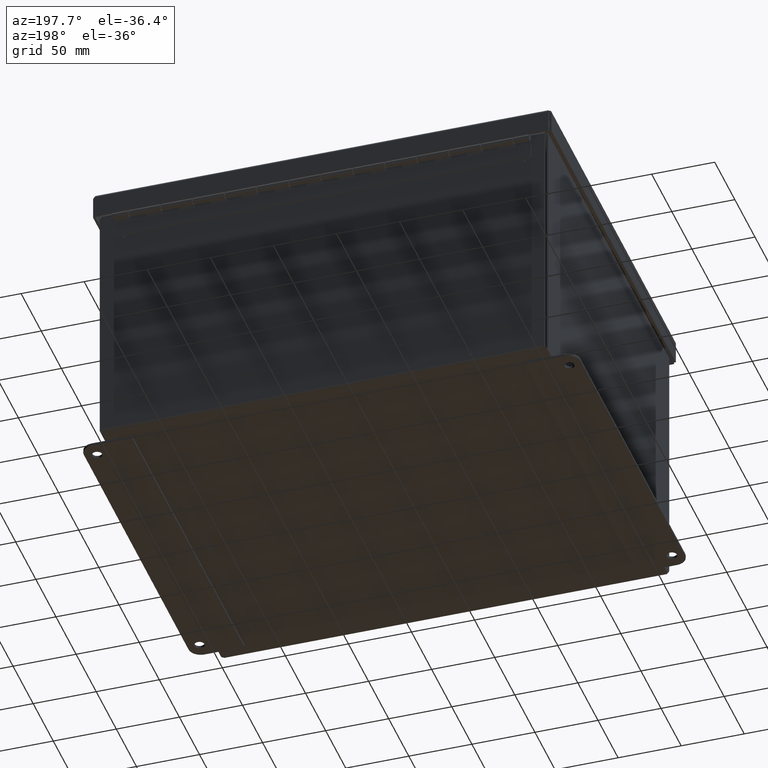
[diagram: clean part render]
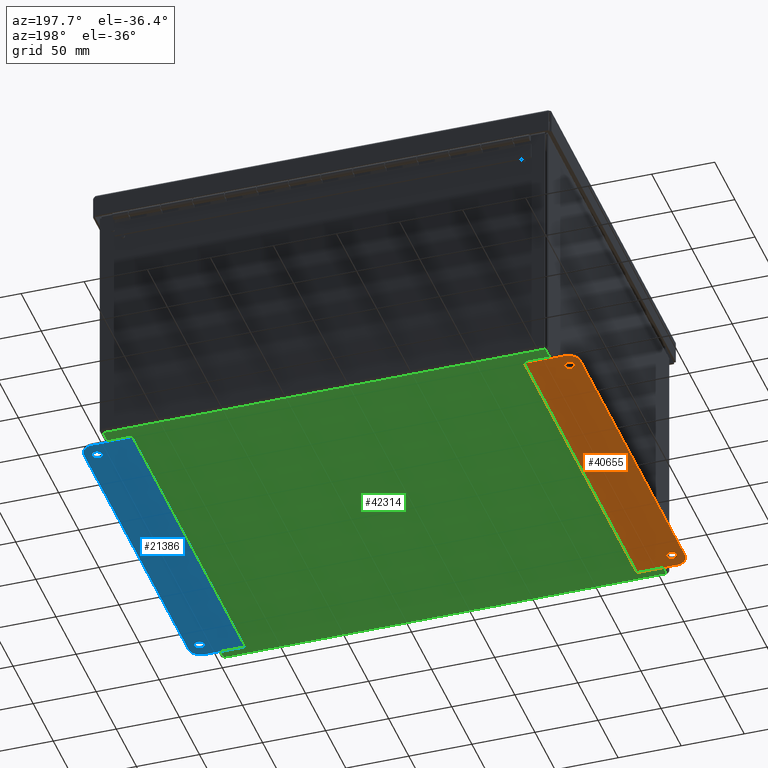
[diagram: same view with three faces highlighted in distinct colors, each labeled with its STEP entity id]
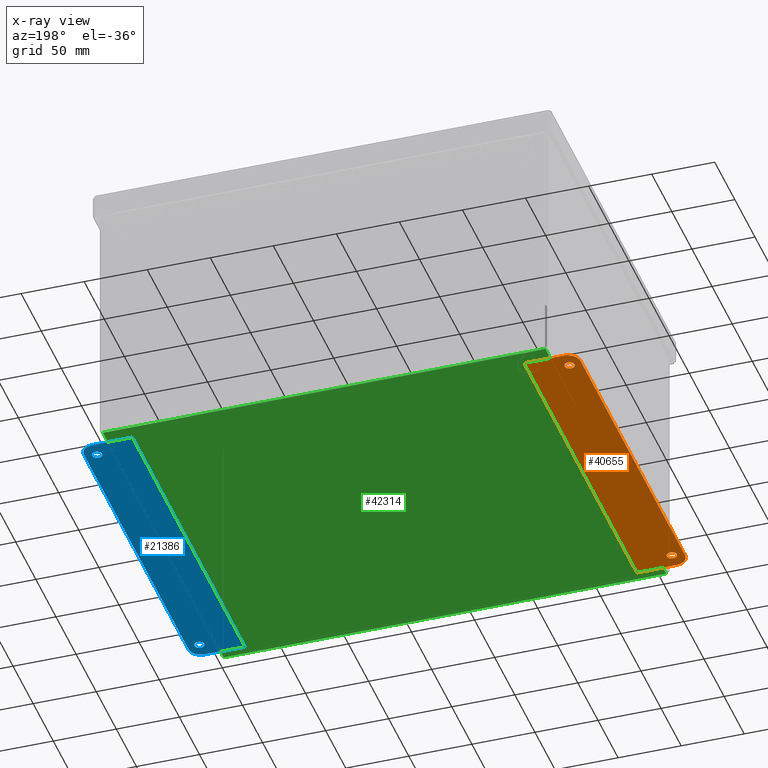
[diagram: x-ray of the same camera — body ghosted, the three highlighted faces saturated]
A machine part, auxiliary view with three faces highlighted in distinct colors.
The next image is the same camera in x-ray (body ghosted, the three faces saturated) — at least one of them is partly hidden behind the body in this view.
Their STEP definitions:

[orange] entity #40655 — the highlighted planar face has unit normal (-0, 0, 1).
#59 = DIRECTION ( 'NONE',  ( 5.827942386483758377E-15, 1.000000000000000000, -8.741913579725637566E-15 ) ) ;
#718 = VERTEX_POINT ( 'NONE', #41761 ) ;
#3323 = CARTESIAN_POINT ( 'NONE',  ( -10.37500000000001243, 3.126100000000546775, -5.388500000001077872 ) ) ;
#4064 = VERTEX_POINT ( 'NONE', #9089 ) ;
#4115 = LINE ( 'NONE', #5648, #13143 ) ;
#4282 = ORIENTED_EDGE ( 'NONE', *, *, #37101, .F. ) ;
#4761 = DIRECTION ( 'NONE',  ( 5.827942386483758377E-15, 1.000000000000000000, -8.741913579725637566E-15 ) ) ;
#5225 = AXIS2_PLACEMENT_3D ( 'NONE', #3323, #17056, #59 ) ;
#5228 = DIRECTION ( 'NONE',  ( -1.000000000000000000, 4.550208014418984023E-15, -6.633095091514698669E-15 ) ) ;
#5648 = CARTESIAN_POINT ( 'NONE',  ( -10.37500000000001243, 3.501100000000546775, -5.388500000001081425 ) ) ;
#5702 = DIRECTION ( 'NONE',  ( -6.633095091514660015E-15, 8.483830530972219345E-15, 1.000000000000000000 ) ) ;
#6813 = CARTESIAN_POINT ( 'NONE',  ( -9.125000000000010658, 3.501100000000540557, -5.388500000001072543 ) ) ;
#7076 = EDGE_CURVE ( 'NONE', #14831, #12314, #9571, .T. ) ;
#8065 = DIRECTION ( 'NONE',  ( 1.000000000000000000, -4.235499125548860679E-15, 6.633095091514696303E-15 ) ) ;
#8532 = DIRECTION ( 'NONE',  ( -6.633095091514660015E-15, 8.483830530972219345E-15, 1.000000000000000000 ) ) ;
#9089 = CARTESIAN_POINT ( 'NONE',  ( -9.125000000000060396, -7.498899999999458998, -5.388500000000980172 ) ) ;
#9571 = LINE ( 'NONE', #11664, #43138 ) ;
#9697 = EDGE_CURVE ( 'NONE', #22745, #718, #4115, .T. ) ;
#9968 = FACE_BOUND ( 'NONE', #22149, .T. ) ;
#11036 = CIRCLE ( 'NONE', #39293, 0.1549999999999998601 ) ;
#11588 = EDGE_LOOP ( 'NONE', ( #38225 ) ) ;
#11620 = AXIS2_PLACEMENT_3D ( 'NONE', #44102, #16506, #40235 ) ;
#11664 = CARTESIAN_POINT ( 'NONE',  ( -10.75000000000006040, -7.123899999999451005, -5.388500000000994383 ) ) ;
#11947 = DIRECTION ( 'NONE',  ( 0.0000000000000000000, 1.000000000000000000, -7.049930306230363182E-15 ) ) ;
#12314 = VERTEX_POINT ( 'NONE', #37268 ) ;
#13143 = VECTOR ( 'NONE', #5228, 39.37007874015748143 ) ;
#14831 = VERTEX_POINT ( 'NONE', #23381 ) ;
#14854 = CARTESIAN_POINT ( 'NONE',  ( -9.125000000000010658, 3.501100000000540557, -5.388500000001072543 ) ) ;
#16506 = DIRECTION ( 'NONE',  ( -6.633095091514660015E-15, 8.483830530972219345E-15, 1.000000000000000000 ) ) ;
#16612 = EDGE_CURVE ( 'NONE', #38915, #38915, #43213, .T. ) ;
#17056 = DIRECTION ( 'NONE',  ( -6.633095091514660015E-15, 8.483830530972219345E-15, 1.000000000000000000 ) ) ;
#18101 = EDGE_LOOP ( 'NONE', ( #4282, #29662, #41437, #27826, #34482, #19038 ) ) ;
#18116 = CARTESIAN_POINT ( 'NONE',  ( -10.37500000000005684, -6.998899999999452781, -5.388500000000991719 ) ) ;
#19038 = ORIENTED_EDGE ( 'NONE', *, *, #42955, .F. ) ;
#19055 = EDGE_CURVE ( 'NONE', #12314, #30542, #35437, .T. ) ;
#19753 = DIRECTION ( 'NONE',  ( 4.550208014419040032E-15, 1.000000000000000000, -8.483830530972189368E-15 ) ) ;
#19802 = VERTEX_POINT ( 'NONE', #25960 ) ;
#20258 = AXIS2_PLACEMENT_3D ( 'NONE', #22868, #5702, #19753 ) ;
#22149 = EDGE_LOOP ( 'NONE', ( #36528 ) ) ;
#22386 = CARTESIAN_POINT ( 'NONE',  ( -10.37500000000006217, -7.498899999999453669, -5.388500000000988166 ) ) ;
#22745 = VERTEX_POINT ( 'NONE', #6813 ) ;
#22868 = CARTESIAN_POINT ( 'NONE',  ( -9.925968017746850336, -1.998899999999456112, -5.388500000001032575 ) ) ;
#23236 = AXIS2_PLACEMENT_3D ( 'NONE', #41784, #42086, #4761 ) ;
#23381 = CARTESIAN_POINT ( 'NONE',  ( -10.75000000000001421, 3.126100000000546775, -5.388500000001080537 ) ) ;
#25956 = FACE_BOUND ( 'NONE', #11588, .T. ) ;
#25960 = CARTESIAN_POINT ( 'NONE',  ( -10.37500000000005684, -6.843899999999453421, -5.388500000000992607 ) ) ;
#26651 = CIRCLE ( 'NONE', #5225, 0.3750000000000002220 ) ;
#27826 = ORIENTED_EDGE ( 'NONE', *, *, #38044, .F. ) ;
#29259 = CARTESIAN_POINT ( 'NONE',  ( -9.125000000000060396, -7.498899999999458998, -5.388500000000980172 ) ) ;
#29529 = VECTOR ( 'NONE', #8065, 39.37007874015748143 ) ;
#29662 = ORIENTED_EDGE ( 'NONE', *, *, #19055, .F. ) ;
#30542 = VERTEX_POINT ( 'NONE', #22386 ) ;
#31301 = VECTOR ( 'NONE', #34468, 39.37007874015748143 ) ;
#32363 = LINE ( 'NONE', #14854, #31301 ) ;
#34468 = DIRECTION ( 'NONE',  ( 4.550208014419040032E-15, 1.000000000000000000, -8.483830530972189368E-15 ) ) ;
#34482 = ORIENTED_EDGE ( 'NONE', *, *, #9697, .F. ) ;
#35218 = CARTESIAN_POINT ( 'NONE',  ( -10.37500000000001421, 3.156100000000547023, -5.388500000001077872 ) ) ;
#35437 = CIRCLE ( 'NONE', #23236, 0.3750000000000002220 ) ;
#36102 = FACE_OUTER_BOUND ( 'NONE', #18101, .T. ) ;
#36528 = ORIENTED_EDGE ( 'NONE', *, *, #16612, .T. ) ;
#37101 = EDGE_CURVE ( 'NONE', #30542, #4064, #38517, .T. ) ;
#37268 = CARTESIAN_POINT ( 'NONE',  ( -10.75000000000006040, -7.123899999999451005, -5.388500000000994383 ) ) ;
#38044 = EDGE_CURVE ( 'NONE', #718, #14831, #26651, .T. ) ;
#38225 = ORIENTED_EDGE ( 'NONE', *, *, #40588, .T. ) ;
#38517 = LINE ( 'NONE', #29259, #29529 ) ;
#38915 = VERTEX_POINT ( 'NONE', #35218 ) ;
#39293 = AXIS2_PLACEMENT_3D ( 'NONE', #18116, #8532, #11947 ) ;
#40235 = DIRECTION ( 'NONE',  ( 0.0000000000000000000, 1.000000000000000000, -7.049930306230363182E-15 ) ) ;
#40588 = EDGE_CURVE ( 'NONE', #19802, #19802, #11036, .T. ) ;
#40655 = ADVANCED_FACE ( 'NONE', ( #25956, #9968, #36102 ), #43187, .F. ) ;
#41437 = ORIENTED_EDGE ( 'NONE', *, *, #7076, .F. ) ;
#41761 = CARTESIAN_POINT ( 'NONE',  ( -10.37500000000001243, 3.501100000000546775, -5.388500000001081425 ) ) ;
#41784 = CARTESIAN_POINT ( 'NONE',  ( -10.37500000000006040, -7.123899999999453669, -5.388500000000990831 ) ) ;
#42086 = DIRECTION ( 'NONE',  ( -6.633095091514660015E-15, 8.483830530972219345E-15, 1.000000000000000000 ) ) ;
#42320 = DIRECTION ( 'NONE',  ( -4.413748875613567126E-15, -1.000000000000000000, 8.483830530972190946E-15 ) ) ;
#42955 = EDGE_CURVE ( 'NONE', #4064, #22745, #32363, .T. ) ;
#43138 = VECTOR ( 'NONE', #42320, 39.37007874015748143 ) ;
#43187 = PLANE ( 'NONE',  #20258 ) ;
#43213 = CIRCLE ( 'NONE', #11620, 0.1549999999999998601 ) ;
#44102 = CARTESIAN_POINT ( 'NONE',  ( -10.37500000000001421, 3.001100000000547219, -5.388500000001076984 ) ) ;

[blue] entity #21386 — the highlighted planar face has unit normal (-0, 0, 1).
#503 = AXIS2_PLACEMENT_3D ( 'NONE', #37149, #4551, #38906 ) ;
#670 = VERTEX_POINT ( 'NONE', #8290 ) ;
#1434 = AXIS2_PLACEMENT_3D ( 'NONE', #2997, #3294, #43893 ) ;
#1937 = LINE ( 'NONE', #42631, #5140 ) ;
#2037 = CARTESIAN_POINT ( 'NONE',  ( 3.124999999999940492, -7.498899999999379062, -5.388500000000896684 ) ) ;
#2997 = CARTESIAN_POINT ( 'NONE',  ( 4.374999999999988454, 3.126100000000614276, -5.388500000000978396 ) ) ;
#3029 = CIRCLE ( 'NONE', #20784, 0.3750000000000002220 ) ;
#3294 = DIRECTION ( 'NONE',  ( -6.633095091514619783E-15, 8.483830530972239855E-15, 1.000000000000000000 ) ) ;
#3935 = ORIENTED_EDGE ( 'NONE', *, *, #15545, .T. ) ;
#4394 = LINE ( 'NONE', #2037, #25130 ) ;
#4551 = DIRECTION ( 'NONE',  ( -6.633095091514619783E-15, 8.483830530972239855E-15, 1.000000000000000000 ) ) ;
#5140 = VECTOR ( 'NONE', #35799, 39.37007874015748143 ) ;
#5298 = CARTESIAN_POINT ( 'NONE',  ( 4.374999999999940492, -7.498899999999386168, -5.388500000000887802 ) ) ;
#5961 = ORIENTED_EDGE ( 'NONE', *, *, #20860, .T. ) ;
#6257 = EDGE_LOOP ( 'NONE', ( #5961 ) ) ;
#8290 = CARTESIAN_POINT ( 'NONE',  ( 4.749999999999943157, -7.123899999999386168, -5.388500000000888690 ) ) ;
#8875 = AXIS2_PLACEMENT_3D ( 'NONE', #40975, #37715, #37274 ) ;
#9302 = DIRECTION ( 'NONE',  ( -4.370956789862818783E-15, -1.000000000000000000, 8.741913579725637566E-15 ) ) ;
#10366 = DIRECTION ( 'NONE',  ( -1.000000000000000000, 4.168460429623900916E-15, -6.633095091514655282E-15 ) ) ;
#11223 = PLANE ( 'NONE',  #503 ) ;
#11692 = CARTESIAN_POINT ( 'NONE',  ( 4.374999999999942268, -7.123899999999386168, -5.388500000000891355 ) ) ;
#11958 = CARTESIAN_POINT ( 'NONE',  ( 3.124999999999989786, 3.501100000000620049, -5.388500000000989942 ) ) ;
#13011 = AXIS2_PLACEMENT_3D ( 'NONE', #42799, #42361, #28721 ) ;
#13372 = EDGE_CURVE ( 'NONE', #37649, #31248, #4394, .T. ) ;
#15440 = ORIENTED_EDGE ( 'NONE', *, *, #44045, .F. ) ;
#15545 = EDGE_CURVE ( 'NONE', #41572, #41572, #21574, .T. ) ;
#17006 = LINE ( 'NONE', #19091, #43084 ) ;
#18271 = ORIENTED_EDGE ( 'NONE', *, *, #34098, .F. ) ;
#18362 = FACE_BOUND ( 'NONE', #6257, .T. ) ;
#19091 = CARTESIAN_POINT ( 'NONE',  ( 4.749999999999988454, 3.126100000000612944, -5.388500000000975731 ) ) ;
#19545 = VERTEX_POINT ( 'NONE', #30948 ) ;
#19922 = CARTESIAN_POINT ( 'NONE',  ( 4.374999999999990230, 3.501100000000614720, -5.388500000000981061 ) ) ;
#20254 = CARTESIAN_POINT ( 'NONE',  ( 3.124999999999989786, 3.501100000000620049, -5.388500000000989942 ) ) ;
#20784 = AXIS2_PLACEMENT_3D ( 'NONE', #11692, #35234, #9302 ) ;
#20860 = EDGE_CURVE ( 'NONE', #34683, #34683, #39349, .T. ) ;
#21386 = ADVANCED_FACE ( 'NONE', ( #18362, #29539, #31667 ), #11223, .F. ) ;
#21574 = CIRCLE ( 'NONE', #8875, 0.1549999999999998601 ) ;
#21996 = CIRCLE ( 'NONE', #1434, 0.3750000000000002220 ) ;
#22792 = VERTEX_POINT ( 'NONE', #5298 ) ;
#23642 = VERTEX_POINT ( 'NONE', #19922 ) ;
#24931 = ORIENTED_EDGE ( 'NONE', *, *, #13372, .F. ) ;
#24950 = CARTESIAN_POINT ( 'NONE',  ( 4.374999999999942268, -7.153899999999386417, -5.388500000000891355 ) ) ;
#25130 = VECTOR ( 'NONE', #29876, 39.37007874015748143 ) ;
#25621 = ORIENTED_EDGE ( 'NONE', *, *, #36163, .F. ) ;
#26020 = EDGE_LOOP ( 'NONE', ( #15440, #38269, #25621, #18271, #34835, #24931 ) ) ;
#28721 = DIRECTION ( 'NONE',  ( -3.524965153115181591E-15, -1.000000000000000000, 7.049930306230363182E-15 ) ) ;
#29539 = FACE_BOUND ( 'NONE', #32753, .T. ) ;
#29876 = DIRECTION ( 'NONE',  ( -4.483169318494080269E-15, -1.000000000000000000, 8.483830530972209878E-15 ) ) ;
#30948 = CARTESIAN_POINT ( 'NONE',  ( 4.749999999999988454, 3.126100000000612944, -5.388500000000975731 ) ) ;
#31248 = VERTEX_POINT ( 'NONE', #40254 ) ;
#31667 = FACE_OUTER_BOUND ( 'NONE', #26020, .T. ) ;
#32753 = EDGE_LOOP ( 'NONE', ( #3935 ) ) ;
#33176 = VECTOR ( 'NONE', #10366, 39.37007874015748143 ) ;
#34098 = EDGE_CURVE ( 'NONE', #22792, #670, #3029, .T. ) ;
#34213 = LINE ( 'NONE', #20254, #33176 ) ;
#34683 = VERTEX_POINT ( 'NONE', #35649 ) ;
#34835 = ORIENTED_EDGE ( 'NONE', *, *, #43013, .F. ) ;
#35234 = DIRECTION ( 'NONE',  ( -6.633095091514619783E-15, 8.483830530972239855E-15, 1.000000000000000000 ) ) ;
#35649 = CARTESIAN_POINT ( 'NONE',  ( 4.374999999999986677, 2.846100000000614472, -5.388500000000976620 ) ) ;
#35799 = DIRECTION ( 'NONE',  ( 1.000000000000000000, -4.483169318494024260E-15, 6.633095091514657649E-15 ) ) ;
#36163 = EDGE_CURVE ( 'NONE', #670, #19545, #17006, .T. ) ;
#36458 = DIRECTION ( 'NONE',  ( 4.346710179688607363E-15, 1.000000000000000000, -8.483830530972211456E-15 ) ) ;
#37149 = CARTESIAN_POINT ( 'NONE',  ( 3.925968017746779282, -1.998899999999383059, -5.388500000000937540 ) ) ;
#37274 = DIRECTION ( 'NONE',  ( -3.524965153115181591E-15, -1.000000000000000000, 7.049930306230363182E-15 ) ) ;
#37649 = VERTEX_POINT ( 'NONE', #11958 ) ;
#37715 = DIRECTION ( 'NONE',  ( -6.633095091514619783E-15, 8.483830530972239855E-15, 1.000000000000000000 ) ) ;
#38269 = ORIENTED_EDGE ( 'NONE', *, *, #42351, .F. ) ;
#38906 = DIRECTION ( 'NONE',  ( -4.483169318494080269E-15, -1.000000000000000000, 8.483830530972209878E-15 ) ) ;
#39349 = CIRCLE ( 'NONE', #13011, 0.1549999999999998601 ) ;
#40254 = CARTESIAN_POINT ( 'NONE',  ( 3.124999999999940492, -7.498899999999379062, -5.388500000000896684 ) ) ;
#40975 = CARTESIAN_POINT ( 'NONE',  ( 4.374999999999943157, -6.998899999999386168, -5.388500000000892243 ) ) ;
#41572 = VERTEX_POINT ( 'NONE', #24950 ) ;
#42351 = EDGE_CURVE ( 'NONE', #19545, #23642, #21996, .T. ) ;
#42361 = DIRECTION ( 'NONE',  ( -6.633095091514619783E-15, 8.483830530972239855E-15, 1.000000000000000000 ) ) ;
#42631 = CARTESIAN_POINT ( 'NONE',  ( 4.374999999999940492, -7.498899999999386168, -5.388500000000887802 ) ) ;
#42799 = CARTESIAN_POINT ( 'NONE',  ( 4.374999999999987566, 3.001100000000614720, -5.388500000000977508 ) ) ;
#43013 = EDGE_CURVE ( 'NONE', #31248, #22792, #1937, .T. ) ;
#43084 = VECTOR ( 'NONE', #36458, 39.37007874015748143 ) ;
#43893 = DIRECTION ( 'NONE',  ( -4.370956789862818783E-15, -1.000000000000000000, 8.741913579725637566E-15 ) ) ;
#44045 = EDGE_CURVE ( 'NONE', #23642, #37649, #34213, .T. ) ;

[green] entity #42314 — the highlighted planar face has unit normal (-0, 0, 1).
#2212 = DIRECTION ( 'NONE',  ( 5.284317631071219743E-15, 1.000000000000000000, -8.483830530972214611E-15 ) ) ;
#5302 = VECTOR ( 'NONE', #31284, 39.37007874015748143 ) ;
#8382 = VERTEX_POINT ( 'NONE', #34030 ) ;
#11774 = ORIENTED_EDGE ( 'NONE', *, *, #39958, .F. ) ;
#12996 = LINE ( 'NONE', #13909, #30589 ) ;
#13699 = AXIS2_PLACEMENT_3D ( 'NONE', #40312, #20009, #40624 ) ;
#13909 = CARTESIAN_POINT ( 'NONE',  ( -3.000000000000062617, -7.905649999999339705, -5.313500000000940027 ) ) ;
#14432 = CARTESIAN_POINT ( 'NONE',  ( -9.906750000000030809, -1.998899999999302901, -5.313500000001035950 ) ) ;
#14792 = LINE ( 'NONE', #21820, #15348 ) ;
#14832 = LINE ( 'NONE', #35998, #15430 ) ;
#15348 = VECTOR ( 'NONE', #15714, 39.37007874015748143 ) ;
#15430 = VECTOR ( 'NONE', #2212, 39.37007874015748143 ) ;
#15591 = CARTESIAN_POINT ( 'NONE',  ( 3.906749999999937994, -7.905649999999376121, -5.313500000000893841 ) ) ;
#15714 = DIRECTION ( 'NONE',  ( -1.000000000000000000, 5.284317631071162945E-15, -6.696790086201105105E-15 ) ) ;
#16558 = CARTESIAN_POINT ( 'NONE',  ( -9.906749999999998835, 3.907850000000695267, -5.313500000001087464 ) ) ;
#19749 = LINE ( 'NONE', #14432, #5302 ) ;
#20009 = DIRECTION ( 'NONE',  ( -6.696790086201060140E-15, 8.483830530972249321E-15, 1.000000000000000000 ) ) ;
#21820 = CARTESIAN_POINT ( 'NONE',  ( -3.000000000000000444, 3.907850000000659296, -5.313500000001040391 ) ) ;
#23873 = EDGE_CURVE ( 'NONE', #43317, #35343, #14792, .T. ) ;
#25888 = EDGE_CURVE ( 'NONE', #8382, #40068, #12996, .T. ) ;
#27604 = CARTESIAN_POINT ( 'NONE',  ( 3.906750000000001055, 3.907850000000622881, -5.313500000000994206 ) ) ;
#28269 = ORIENTED_EDGE ( 'NONE', *, *, #25888, .F. ) ;
#28394 = EDGE_CURVE ( 'NONE', #40068, #43317, #14832, .T. ) ;
#30589 = VECTOR ( 'NONE', #42581, 39.37007874015748143 ) ;
#31284 = DIRECTION ( 'NONE',  ( -5.284317631071219743E-15, -1.000000000000000000, 8.483830530972214611E-15 ) ) ;
#33491 = ORIENTED_EDGE ( 'NONE', *, *, #28394, .F. ) ;
#34030 = CARTESIAN_POINT ( 'NONE',  ( -9.906750000000061007, -7.905649999999304178, -5.313500000000987100 ) ) ;
#34730 = FACE_OUTER_BOUND ( 'NONE', #38443, .T. ) ;
#35343 = VERTEX_POINT ( 'NONE', #16558 ) ;
#35998 = CARTESIAN_POINT ( 'NONE',  ( 3.906749999999969525, -1.998899999999375954, -5.313500000000944468 ) ) ;
#36932 = PLANE ( 'NONE',  #13699 ) ;
#38443 = EDGE_LOOP ( 'NONE', ( #41291, #33491, #28269, #11774 ) ) ;
#39958 = EDGE_CURVE ( 'NONE', #35343, #8382, #19749, .T. ) ;
#40068 = VERTEX_POINT ( 'NONE', #15591 ) ;
#40312 = CARTESIAN_POINT ( 'NONE',  ( -3.000000000000031530, -1.998899999999339316, -5.313500000000989765 ) ) ;
#40624 = DIRECTION ( 'NONE',  ( -5.284317631071219743E-15, -1.000000000000000000, 8.483830530972214611E-15 ) ) ;
#41291 = ORIENTED_EDGE ( 'NONE', *, *, #23873, .F. ) ;
#42314 = ADVANCED_FACE ( 'NONE', ( #34730 ), #36932, .F. ) ;
#42581 = DIRECTION ( 'NONE',  ( 1.000000000000000000, -5.284317631071162945E-15, 6.696790086201105105E-15 ) ) ;
#43317 = VERTEX_POINT ( 'NONE', #27604 ) ;